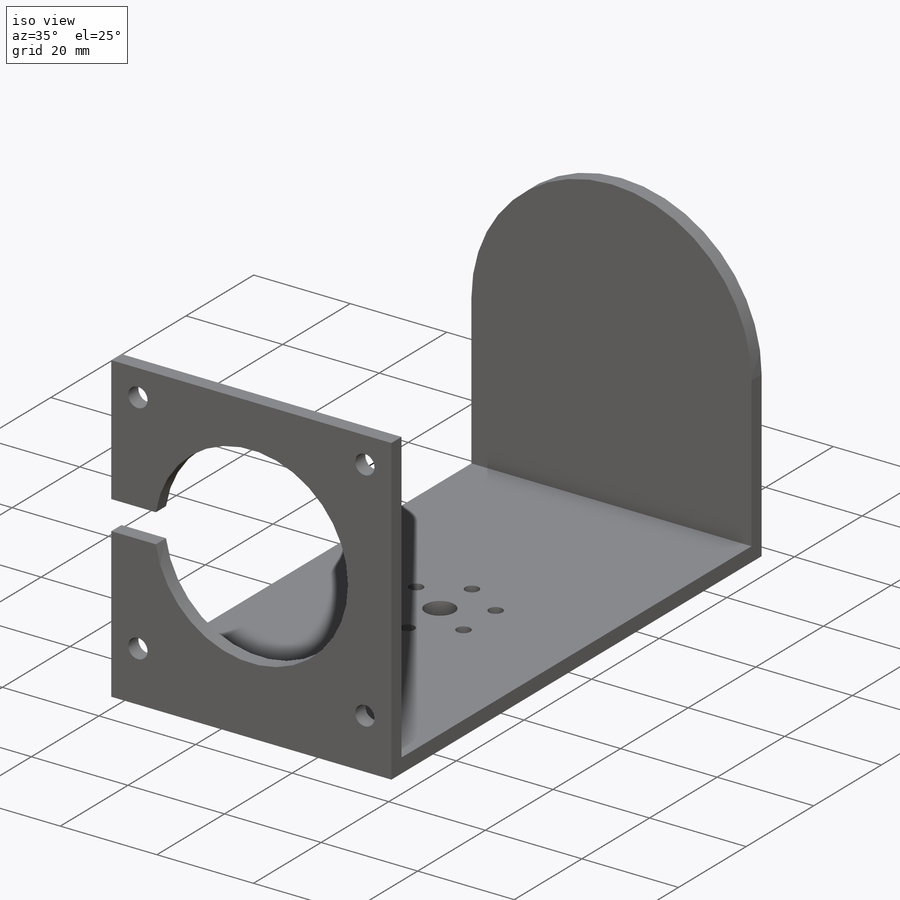
[diagram: iso view]
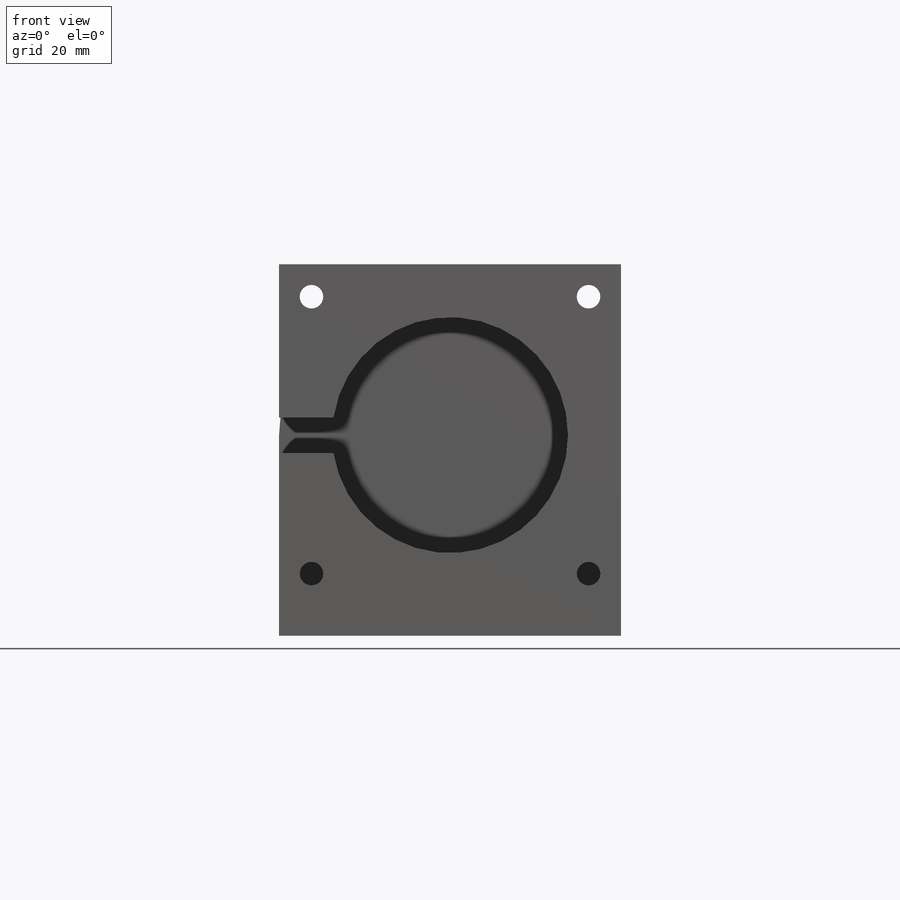
[diagram: front view]
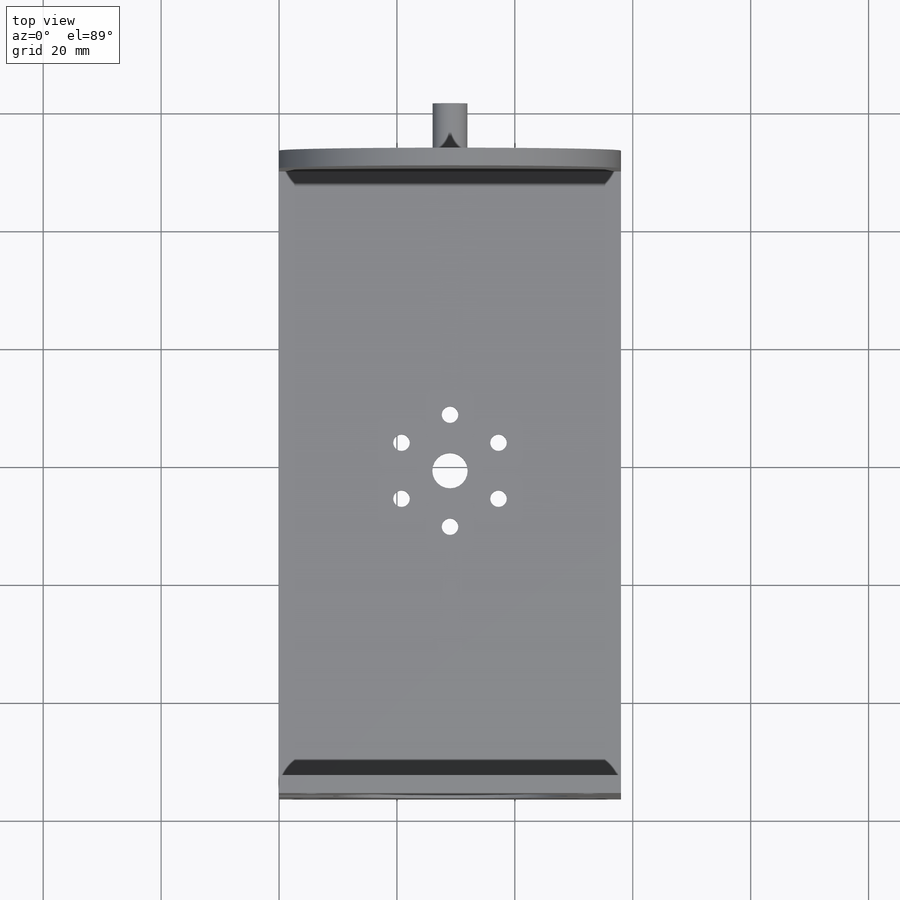
[diagram: top view]
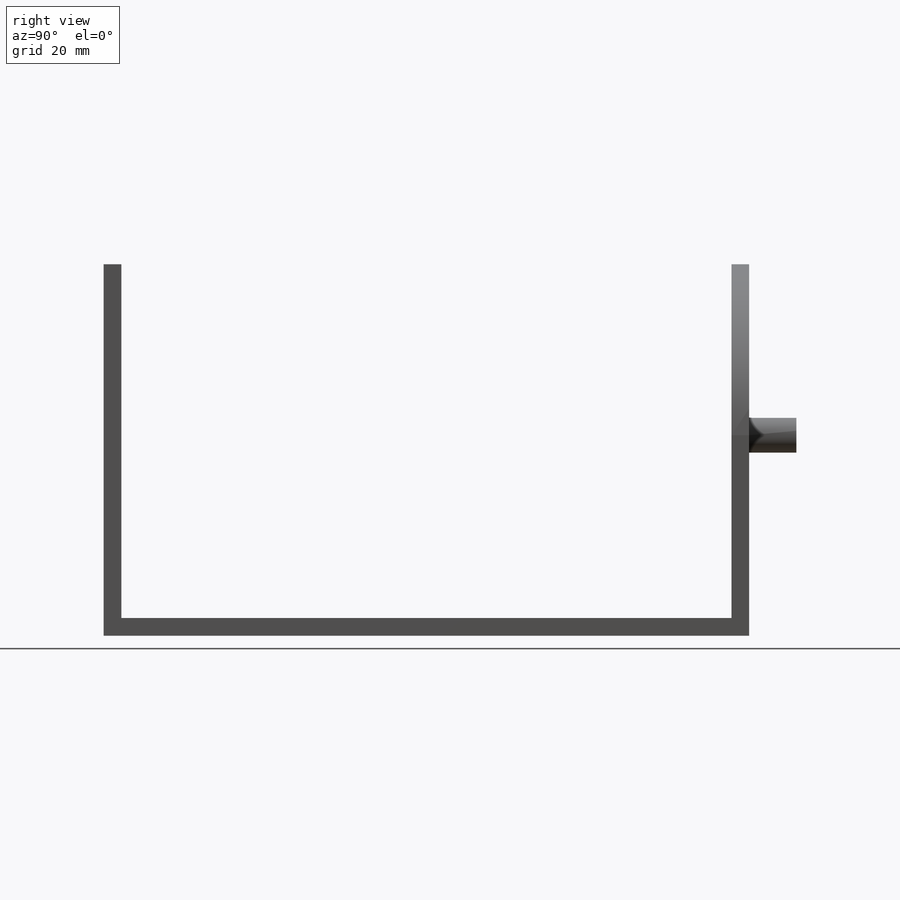
[diagram: right view]
SOLIDWORKS PART (.sldprt)
format: sldprt  version: not decoded by parser v0  size: 243,712 bytes
history: native  units: mm
features: sketch x7, cut_extrude x5, extrude x2, material x1 (+12 scaffold rows collapsed)
feature tree (27):
  scaffold x12  (default folders/planes/origin — collapsed)
  material  "1060 Alloy"
  sketch  "Sketch1"  dims[D1=60.0mm D2=103.5mm D3=3.0mm D4=63.0mm D5=109.5mm D6=3.0mm]
  extrude  "Boss-Extrude1"  Depth=58mm
  sketch  "Sketch2"  dims[c1.D4=4.0mm c1.D5=40.0mm c1.D1=5.5mm c1.D2=5.5mm c1.D3=29.0mm c2.D4=~9.854377mm]
  cut_extrude  "Cut-Extrude1"  Depth=58mm
  sketch  "Sketch3"  dims[c1.D2=29.0mm c1.D1=29.0mm c2.D2=~41.012193mm]
  cut_extrude  "Cut-Extrude2"  Depth=58mm
  sketch  "Sketch4"  dims[c1.D2=29.0mm c1.D1=29.0mm c2.D2=~41.012193mm]
  cut_extrude  "Cut-Extrude3"  Depth=58mm
  sketch  "Sketch5"  dims[D1=5.9mm]
  extrude  "Boss-Extrude2"  Depth=8mm
  sketch  "Sketch6"  dims[D1=6.0mm D2=19.0mm D3=2.8mm D4=6.0]
  cut_extrude  "Cut-Extrude4"  Depth=8mm
  sketch  "Sketch7"  dims[c1.D1=3.0mm c1.D2=5.5mm c1.D3=~7.281932mm c2.D2=6.0mm c2.D3=6.0mm]
  cut_extrude  "Cut-Extrude5"  Depth=10mm
decode coverage: 14 of 14 modeling features carry decoded parameters
note: ~ marks probable driven/reference dimensions
note: suppression state not decoded; provenance and decode notes live in map.json
